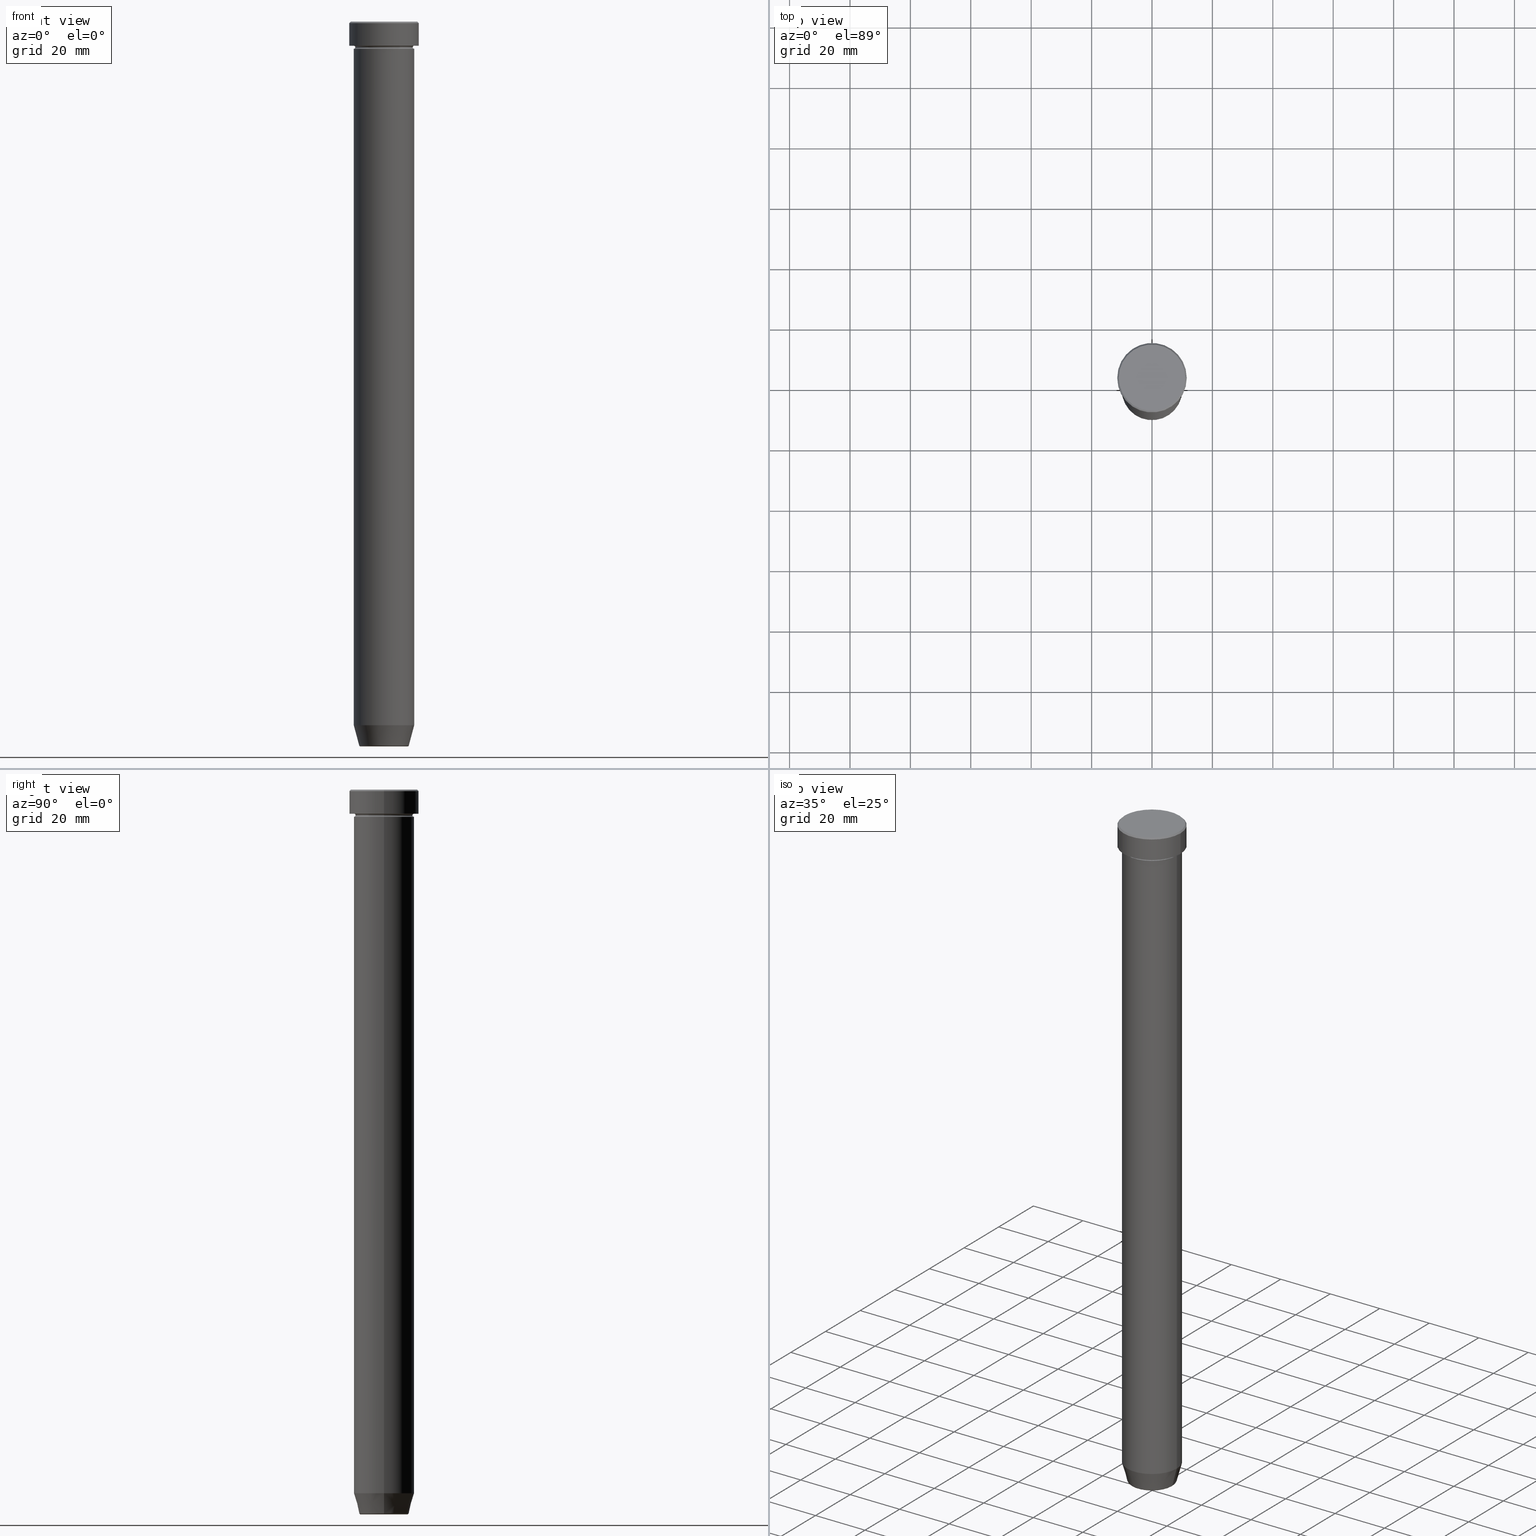
[diagram: canonical four-view strip — front | top / right | iso, engineering-drawing reading convention]
A machine part, canonical four-view strip (front | top / right | iso — engineering-drawing reading convention). The complete STEP part file that produces these views, byte-faithful:
ISO-10303-21;
HEADER;
FILE_DESCRIPTION (( 'STEP AP203' ),
    '1' );
FILE_NAME ('cfd7.STEP',
    '2024-01-02T20:51:13',
    ( '' ),
    ( '' ),
    'SwSTEP 2.0',
    'SolidWorks 2019',
    '' );
FILE_SCHEMA (( 'CONFIG_CONTROL_DESIGN' ));
ENDSEC;

DATA;
#1 = EDGE_CURVE ( 'NONE', #580, #427, #62, .T. ) ;
#2 = APPROVAL_DATE_TIME ( #593, #185 ) ;
#3 = AXIS2_PLACEMENT_3D ( 'NONE', #544, #119, #496 ) ;
#4 = DIRECTION ( 'NONE',  ( -0.000000000000000000, -0.000000000000000000, 1.000000000000000000 ) ) ;
#5 = ORIENTED_EDGE ( 'NONE', *, *, #238, .T. ) ;
#6 = DIRECTION ( 'NONE',  ( 1.000000000000000000, 0.000000000000000000, 0.000000000000000000 ) ) ;
#7 = ORIENTED_EDGE ( 'NONE', *, *, #264, .F. ) ;
#8 = PRODUCT_DEFINITION_FORMATION_WITH_SPECIFIED_SOURCE ( 'LIBOVOLN�', '', #524, .NOT_KNOWN. ) ;
#9 = EDGE_CURVE ( 'NONE', #16, #153, #400, .T. ) ;
#10 = CARTESIAN_POINT ( 'NONE',  ( 0.000000000000000000, 0.000000000000000000, 0.000000000000000000 ) ) ;
#11 = ORIENTED_EDGE ( 'NONE', *, *, #140, .F. ) ;
#12 = AXIS2_PLACEMENT_3D ( 'NONE', #106, #108, #480 ) ;
#13 = ORIENTED_EDGE ( 'NONE', *, *, #271, .F. ) ;
#14 = DATE_TIME_ROLE ( 'classification_date' ) ;
#15 = CARTESIAN_POINT ( 'NONE',  ( 0.000000000000000000, 0.000000000000000000, 0.000000000000000000 ) ) ;
#16 = VERTEX_POINT ( 'NONE', #165 ) ;
#17 = EDGE_CURVE ( 'NONE', #485, #552, #137, .T. ) ;
#18 = CIRCLE ( 'NONE', #361, 10.00000000000000000 ) ;
#19 = PERSON_AND_ORGANIZATION_ROLE ( 'creator' ) ;
#20 =( GEOMETRIC_REPRESENTATION_CONTEXT ( 3 ) GLOBAL_UNCERTAINTY_ASSIGNED_CONTEXT ( ( #217 ) ) GLOBAL_UNIT_ASSIGNED_CONTEXT ( ( #549, #46, #587 ) ) REPRESENTATION_CONTEXT ( 'NONE', 'WORKASPACE' ) );
#21 = LOCAL_TIME ( 21, 51, 13.00000000000000000, #43 ) ;
#22 = DIRECTION ( 'NONE',  ( 1.000000000000000000, 0.000000000000000000, 0.000000000000000000 ) ) ;
#23 = ORIENTED_EDGE ( 'NONE', *, *, #362, .F. ) ;
#24 = APPROVAL_STATUS ( 'not_yet_approved' ) ;
#25 = DIRECTION ( 'NONE',  ( 0.7071067811865426878, 8.659560562354874926E-17, -0.7071067811865524577 ) ) ;
#26 = ORIENTED_EDGE ( 'NONE', *, *, #147, .F. ) ;
#27 = CIRCLE ( 'NONE', #134, 10.00000000000000000 ) ;
#28 = DIRECTION ( 'NONE',  ( 1.000000000000000000, 0.000000000000000000, 0.000000000000000000 ) ) ;
#29 = DIRECTION ( 'NONE',  ( -0.000000000000000000, -0.000000000000000000, 1.000000000000000000 ) ) ;
#30 = AXIS2_PLACEMENT_3D ( 'NONE', #168, #497, #78 ) ;
#31 = AXIS2_PLACEMENT_3D ( 'NONE', #237, #98, #178 ) ;
#32 = EDGE_CURVE ( 'NONE', #247, #16, #467, .T. ) ;
#33 = CARTESIAN_POINT ( 'NONE',  ( 0.000000000000000000, 0.000000000000000000, -240.0000000000000000 ) ) ;
#34 = CARTESIAN_POINT ( 'NONE',  ( -7.740692158992660055, 9.479613875695375681E-16, -239.5000000000000000 ) ) ;
#35 = CARTESIAN_POINT ( 'NONE',  ( 10.00000000000000000, 0.000000000000000000, -8.500000000000000000 ) ) ;
#36 = DIRECTION ( 'NONE',  ( -1.000000000000000000, 1.224646799147353454E-16, 0.000000000000000000 ) ) ;
#37 = CIRCLE ( 'NONE', #115, 10.00000000000000000 ) ;
#38 = DIRECTION ( 'NONE',  ( 1.000000000000000000, 0.000000000000000000, 0.000000000000000000 ) ) ;
#39 = CARTESIAN_POINT ( 'NONE',  ( 0.000000000000000000, 11.50000000000000000, -8.000000000000000000 ) ) ;
#40 = EDGE_CURVE ( 'NONE', #120, #474, #18, .T. ) ;
#41 = DIRECTION ( 'NONE',  ( 0.000000000000000000, 0.000000000000000000, 1.000000000000000000 ) ) ;
#42 = CARTESIAN_POINT ( 'NONE',  ( 0.000000000000000000, 0.000000000000000000, -240.0000000000000000 ) ) ;
#43 = COORDINATED_UNIVERSAL_TIME_OFFSET ( 1, 0, .AHEAD. ) ;
#44 = FACE_OUTER_BOUND ( 'NONE', #48, .T. ) ;
#45 = CONICAL_SURFACE ( 'NONE', #487, 8.124355652982137244, 0.2617993877991495744 ) ;
#46 =( NAMED_UNIT ( * ) PLANE_ANGLE_UNIT ( ) SI_UNIT ( $, .RADIAN. ) );
#47 = FACE_OUTER_BOUND ( 'NONE', #141, .T. ) ;
#48 = EDGE_LOOP ( 'NONE', ( #568, #288, #13, #233 ) ) ;
#49 = CARTESIAN_POINT ( 'NONE',  ( -11.50000000000000000, 1.408343819019456176E-15, -8.000000000000000000 ) ) ;
#50 = EDGE_CURVE ( 'NONE', #118, #351, #500, .T. ) ;
#51 = CARTESIAN_POINT ( 'NONE',  ( 0.000000000000000000, 0.000000000000000000, -8.500000000000000000 ) ) ;
#52 = CLOSED_SHELL ( 'NONE', ( #398, #543, #256, #408, #248, #181, #444, #96, #113, #202, #392, #583, #527 ) ) ;
#53 = PERSON_AND_ORGANIZATION_ROLE ( 'classification_officer' ) ;
#54 = CARTESIAN_POINT ( 'NONE',  ( 0.000000000000000000, 0.000000000000000000, 0.000000000000000000 ) ) ;
#55 = CC_DESIGN_PERSON_AND_ORGANIZATION_ASSIGNMENT ( #210, #19, ( #8 ) ) ;
#56 = EDGE_LOOP ( 'NONE', ( #82, #65, #26, #196 ) ) ;
#57 = AXIS2_PLACEMENT_3D ( 'NONE', #61, #564, #386 ) ;
#58 = CYLINDRICAL_SURFACE ( 'NONE', #172, 9.999999999999998224 ) ;
#59 = ORIENTED_EDGE ( 'NONE', *, *, #355, .T. ) ;
#60 = EDGE_CURVE ( 'NONE', #552, #485, #100, .T. ) ;
#61 = CARTESIAN_POINT ( 'NONE',  ( 0.000000000000000000, 0.000000000000000000, -8.500000000000000000 ) ) ;
#62 = CIRCLE ( 'NONE', #388, 10.00000000000000000 ) ;
#63 = EDGE_LOOP ( 'NONE', ( #521, #325 ) ) ;
#64 = DIRECTION ( 'NONE',  ( 1.000000000000000000, 0.000000000000000000, 0.000000000000000000 ) ) ;
#65 = ORIENTED_EDGE ( 'NONE', *, *, #32, .T. ) ;
#66 = PRODUCT_DEFINITION_SHAPE ( 'NONE', 'NONE',  #211 ) ;
#67 = APPLICATION_CONTEXT ( 'configuration controlled 3d designs of mechanical parts and assemblies' ) ;
#68 = CIRCLE ( 'NONE', #154, 7.740692158992660055 ) ;
#69 = AXIS2_PLACEMENT_3D ( 'NONE', #54, #114, #249 ) ;
#70 = DIRECTION ( 'NONE',  ( -0.2588190451025209060, 3.169619151431766790E-17, 0.9659258262890682012 ) ) ;
#71 = ORIENTED_EDGE ( 'NONE', *, *, #238, .F. ) ;
#72 = DIRECTION ( 'NONE',  ( -0.000000000000000000, -0.000000000000000000, 1.000000000000000000 ) ) ;
#73 = ORIENTED_EDGE ( 'NONE', *, *, #571, .T. ) ;
#74 = CIRCLE ( 'NONE', #31, 10.00000000000000000 ) ;
#75 = CARTESIAN_POINT ( 'NONE',  ( 0.000000000000000000, 0.000000000000000000, -8.500000000000000000 ) ) ;
#76 = EDGE_LOOP ( 'NONE', ( #130, #431, #73, #261 ) ) ;
#77 = DIRECTION ( 'NONE',  ( -0.000000000000000000, -0.000000000000000000, 1.000000000000000000 ) ) ;
#78 = DIRECTION ( 'NONE',  ( -1.000000000000000000, 0.000000000000000000, 0.000000000000000000 ) ) ;
#79 = CIRCLE ( 'NONE', #356, 10.00000000000000000 ) ;
#80 = EDGE_CURVE ( 'NONE', #573, #151, #123, .T. ) ;
#81 = LINE ( 'NONE', #177, #558 ) ;
#82 = ORIENTED_EDGE ( 'NONE', *, *, #508, .F. ) ;
#83 = DIRECTION ( 'NONE',  ( 1.000000000000000000, 0.000000000000000000, 0.000000000000000000 ) ) ;
#84 = DIRECTION ( 'NONE',  ( 1.000000000000000000, 0.000000000000000000, 0.000000000000000000 ) ) ;
#85 = DATE_AND_TIME ( #228, #227 ) ;
#86 = EDGE_CURVE ( 'NONE', #120, #351, #268, .T. ) ;
#87 = DIRECTION ( 'NONE',  ( -0.7071067811865426878, 0.000000000000000000, -0.7071067811865524577 ) ) ;
#88 = AXIS2_PLACEMENT_3D ( 'NONE', #530, #239, #476 ) ;
#89 = APPLICATION_PROTOCOL_DEFINITION ( 'international standard', 'config_control_design', 1994, #466 ) ;
#90 = CARTESIAN_POINT ( 'NONE',  ( 0.000000000000000000, 0.000000000000000000, 0.000000000000000000 ) ) ;
#91 = APPROVAL_STATUS ( 'not_yet_approved' ) ;
#92 = DIRECTION ( 'NONE',  ( 1.000000000000000000, 0.000000000000000000, 0.000000000000000000 ) ) ;
#93 = VECTOR ( 'NONE', #457, 1000.000000000000000 ) ;
#94 = CARTESIAN_POINT ( 'NONE',  ( 10.00000000000000000, 1.224646799147353256E-15, -8.000000000000000000 ) ) ;
#95 = DIRECTION ( 'NONE',  ( 0.000000000000000000, 0.000000000000000000, -1.000000000000000000 ) ) ;
#96 = ADVANCED_FACE ( 'NONE', ( #47 ), #280, .T. ) ;
#97 = COORDINATED_UNIVERSAL_TIME_OFFSET ( 1, 0, .AHEAD. ) ;
#98 = DIRECTION ( 'NONE',  ( -0.000000000000000000, -0.000000000000000000, 1.000000000000000000 ) ) ;
#99 = CARTESIAN_POINT ( 'NONE',  ( 8.223655072137191269, 0.000000000000000000, -239.6294095225512706 ) ) ;
#100 = CIRCLE ( 'NONE', #588, 11.50000000000000000 ) ;
#101 = AXIS2_PLACEMENT_3D ( 'NONE', #269, #41, #132 ) ;
#102 = AXIS2_PLACEMENT_3D ( 'NONE', #414, #411, #331 ) ;
#103 = CARTESIAN_POINT ( 'NONE',  ( -11.50000000000000000, 1.408343819019456176E-15, 0.000000000000000000 ) ) ;
#104 = APPROVAL ( #326, 'NEUR�EN�' ) ;
#105 = ORIENTED_EDGE ( 'NONE', *, *, #80, .T. ) ;
#106 = CARTESIAN_POINT ( 'NONE',  ( 0.000000000000000000, 0.000000000000000000, -22.00000000000000000 ) ) ;
#107 = ORIENTED_EDGE ( 'NONE', *, *, #32, .F. ) ;
#108 = DIRECTION ( 'NONE',  ( -0.000000000000000000, -0.000000000000000000, 1.000000000000000000 ) ) ;
#109 = ORIENTED_EDGE ( 'NONE', *, *, #483, .T. ) ;
#110 = DIRECTION ( 'NONE',  ( -0.000000000000000000, -0.000000000000000000, 1.000000000000000000 ) ) ;
#111 = EDGE_LOOP ( 'NONE', ( #377, #518 ) ) ;
#112 = PERSON_AND_ORGANIZATION ( #577, #195 ) ;
#113 = ADVANCED_FACE ( 'NONE', ( #368, #273 ), #146, .T. ) ;
#114 = DIRECTION ( 'NONE',  ( 0.000000000000000000, 0.000000000000000000, -1.000000000000000000 ) ) ;
#115 = AXIS2_PLACEMENT_3D ( 'NONE', #138, #509, #363 ) ;
#116 = ORIENTED_EDGE ( 'NONE', *, *, #223, .T. ) ;
#117 = DIRECTION ( 'NONE',  ( 1.000000000000000000, 0.000000000000000000, 0.000000000000000000 ) ) ;
#118 = VERTEX_POINT ( 'NONE', #553 ) ;
#119 = DIRECTION ( 'NONE',  ( -0.000000000000000000, -1.000000000000000000, -0.000000000000000000 ) ) ;
#120 = VERTEX_POINT ( 'NONE', #282 ) ;
#121 = ADVANCED_FACE ( 'NONE', ( #44 ), #150, .T. ) ;
#122 = CARTESIAN_POINT ( 'NONE',  ( 0.000000000000000000, 0.000000000000000000, -22.00000000000000000 ) ) ;
#123 = LINE ( 'NONE', #219, #578 ) ;
#124 = CARTESIAN_POINT ( 'NONE',  ( 0.000000000000000000, 2.326828918379971286E-14, -240.0000000000000000 ) ) ;
#125 = EDGE_LOOP ( 'NONE', ( #536, #109, #259, #532 ) ) ;
#126 = AXIS2_PLACEMENT_3D ( 'NONE', #453, #29, #84 ) ;
#127 = CC_DESIGN_PERSON_AND_ORGANIZATION_ASSIGNMENT ( #456, #459, ( #524 ) ) ;
#128 = LOCAL_TIME ( 21, 51, 13.00000000000000000, #302 ) ;
#129 = DATE_AND_TIME ( #598, #380 ) ;
#130 = ORIENTED_EDGE ( 'NONE', *, *, #17, .T. ) ;
#131 = CC_DESIGN_PERSON_AND_ORGANIZATION_ASSIGNMENT ( #112, #257, ( #8 ) ) ;
#132 = DIRECTION ( 'NONE',  ( 1.000000000000000000, 0.000000000000000000, 0.000000000000000000 ) ) ;
#133 = PLANE ( 'NONE',  #590 ) ;
#134 = AXIS2_PLACEMENT_3D ( 'NONE', #122, #171, #22 ) ;
#135 = PERSON_AND_ORGANIZATION ( #577, #195 ) ;
#136 = FACE_OUTER_BOUND ( 'NONE', #76, .T. ) ;
#137 = CIRCLE ( 'NONE', #126, 11.50000000000000000 ) ;
#138 = CARTESIAN_POINT ( 'NONE',  ( 0.000000000000000000, 0.000000000000000000, -8.000000000000000000 ) ) ;
#139 = CARTESIAN_POINT ( 'NONE',  ( 8.124355652982137244, 0.000000000000000000, -240.0000000000000000 ) ) ;
#140 = EDGE_CURVE ( 'NONE', #481, #351, #74, .T. ) ;
#141 = EDGE_LOOP ( 'NONE', ( #349, #206, #436, #545 ) ) ;
#142 = CARTESIAN_POINT ( 'NONE',  ( 0.000000000000000000, 0.000000000000000000, 0.000000000000000000 ) ) ;
#143 = AXIS2_PLACEMENT_3D ( 'NONE', #10, #294, #430 ) ;
#144 = AXIS2_PLACEMENT_3D ( 'NONE', #164, #77, #117 ) ;
#145 = APPROVAL_DATE_TIME ( #293, #299 ) ;
#146 = PLANE ( 'NONE',  #449 ) ;
#147 = EDGE_CURVE ( 'NONE', #153, #16, #517, .T. ) ;
#148 = SHAPE_DEFINITION_REPRESENTATION ( #66, #199 ) ;
#149 = CARTESIAN_POINT ( 'NONE',  ( 0.000000000000000000, 0.000000000000000000, -0.5000000000000073275 ) ) ;
#150 = CONICAL_SURFACE ( 'NONE', #554, 8.124355652982137244, 0.2617993877991495744 ) ;
#151 = VERTEX_POINT ( 'NONE', #547 ) ;
#152 = DIRECTION ( 'NONE',  ( 0.000000000000000000, 0.000000000000000000, -1.000000000000000000 ) ) ;
#153 = VERTEX_POINT ( 'NONE', #99 ) ;
#154 = AXIS2_PLACEMENT_3D ( 'NONE', #42, #277, #418 ) ;
#155 = CIRCLE ( 'NONE', #180, 9.999999999999998224 ) ;
#156 = CARTESIAN_POINT ( 'NONE',  ( 0.000000000000000000, 0.000000000000000000, -232.9999999999999716 ) ) ;
#157 = ORIENTED_EDGE ( 'NONE', *, *, #330, .T. ) ;
#158 = DIRECTION ( 'NONE',  ( -0.000000000000000000, -0.000000000000000000, 1.000000000000000000 ) ) ;
#159 = EDGE_LOOP ( 'NONE', ( #419, #340, #384, #563 ) ) ;
#160 = EDGE_CURVE ( 'NONE', #203, #153, #352, .T. ) ;
#161 = AXIS2_PLACEMENT_3D ( 'NONE', #465, #374, #409 ) ;
#162 = ORIENTED_EDGE ( 'NONE', *, *, #80, .F. ) ;
#163 = MANIFOLD_SOLID_BREP ( 'Zkosen�1', #52 ) ;
#164 = CARTESIAN_POINT ( 'NONE',  ( 0.000000000000000000, 0.000000000000000000, -239.5000000000000000 ) ) ;
#165 = CARTESIAN_POINT ( 'NONE',  ( -8.223655072137191269, 1.115877042642912251E-15, -239.6294095225512706 ) ) ;
#166 = EDGE_CURVE ( 'NONE', #474, #481, #504, .T. ) ;
#167 = DIRECTION ( 'NONE',  ( -0.000000000000000000, -0.000000000000000000, 1.000000000000000000 ) ) ;
#168 = CARTESIAN_POINT ( 'NONE',  ( 0.000000000000000000, 0.000000000000000000, -239.6294095225512706 ) ) ;
#169 = DIRECTION ( 'NONE',  ( 0.000000000000000000, -1.000000000000000000, 0.000000000000000000 ) ) ;
#170 = CARTESIAN_POINT ( 'NONE',  ( 0.000000000000000000, 0.000000000000000000, -8.000000000000000000 ) ) ;
#171 = DIRECTION ( 'NONE',  ( -0.000000000000000000, -0.000000000000000000, 1.000000000000000000 ) ) ;
#172 = AXIS2_PLACEMENT_3D ( 'NONE', #560, #244, #284 ) ;
#173 = CARTESIAN_POINT ( 'NONE',  ( -10.00000000000000000, 1.224646799147353256E-15, -8.500000000000000000 ) ) ;
#174 = CIRCLE ( 'NONE', #234, 7.740692158992660055 ) ;
#175 = CARTESIAN_POINT ( 'NONE',  ( 0.000000000000000000, 0.000000000000000000, 0.000000000000000000 ) ) ;
#176 = DIRECTION ( 'NONE',  ( -1.000000000000000000, 1.224646799147353454E-16, 0.000000000000000000 ) ) ;
#177 = CARTESIAN_POINT ( 'NONE',  ( 11.50000000000000000, 0.000000000000000000, 0.000000000000000000 ) ) ;
#178 = DIRECTION ( 'NONE',  ( 1.000000000000000000, 0.000000000000000000, 0.000000000000000000 ) ) ;
#179 = DIRECTION ( 'NONE',  ( -0.000000000000000000, -0.000000000000000000, 1.000000000000000000 ) ) ;
#180 = AXIS2_PLACEMENT_3D ( 'NONE', #156, #525, #64 ) ;
#181 = ADVANCED_FACE ( 'NONE', ( #463 ), #133, .T. ) ;
#182 = FACE_OUTER_BOUND ( 'NONE', #319, .T. ) ;
#183 = FACE_OUTER_BOUND ( 'NONE', #159, .T. ) ;
#184 = CARTESIAN_POINT ( 'NONE',  ( -7.740692158992660055, 9.775343368540041107E-16, -240.0000000000000000 ) ) ;
#185 = APPROVAL ( #91, 'NEUR�EN�' ) ;
#186 = DIRECTION ( 'NONE',  ( -1.000000000000000000, 0.000000000000000000, 0.000000000000000000 ) ) ;
#187 = CARTESIAN_POINT ( 'NONE',  ( 9.999999999999998224, 0.000000000000000000, -232.9999999999999716 ) ) ;
#188 = CIRCLE ( 'NONE', #531, 9.999999999999998224 ) ;
#189 = EDGE_CURVE ( 'NONE', #118, #241, #334, .T. ) ;
#190 = AXIS2_PLACEMENT_3D ( 'NONE', #191, #110, #376 ) ;
#191 = CARTESIAN_POINT ( 'NONE',  ( 0.000000000000000000, 0.000000000000000000, -9.000000000000001776 ) ) ;
#192 = EDGE_LOOP ( 'NONE', ( #447, #292, #283, #300 ) ) ;
#193 = PLANE ( 'NONE',  #278 ) ;
#194 = AXIS2_PLACEMENT_3D ( 'NONE', #173, #586, #176 ) ;
#195 = ORGANIZATION ( 'NEUR�EN�', 'NEUR�EN�', '' ) ;
#196 = ORIENTED_EDGE ( 'NONE', *, *, #160, .F. ) ;
#197 = DIRECTION ( 'NONE',  ( 1.000000000000000000, 0.000000000000000000, 0.000000000000000000 ) ) ;
#198 = EDGE_LOOP ( 'NONE', ( #501, #489 ) ) ;
#199 = ADVANCED_BREP_SHAPE_REPRESENTATION ( 'cfd7', ( #163, #373, #101 ), #20 ) ;
#200 = AXIS2_PLACEMENT_3D ( 'NONE', #149, #332, #197 ) ;
#201 = DIRECTION ( 'NONE',  ( 1.000000000000000000, 0.000000000000000000, 0.000000000000000000 ) ) ;
#202 = ADVANCED_FACE ( 'NONE', ( #182 ), #510, .T. ) ;
#203 = VERTEX_POINT ( 'NONE', #515 ) ;
#204 = CARTESIAN_POINT ( 'NONE',  ( 10.00000000000000000, 0.000000000000000000, -22.00000000000000000 ) ) ;
#205 = PRODUCT_RELATED_PRODUCT_CATEGORY ( 'detail', '', ( #524 ) ) ;
#206 = ORIENTED_EDGE ( 'NONE', *, *, #60, .T. ) ;
#207 = COORDINATED_UNIVERSAL_TIME_OFFSET ( 1, 0, .AHEAD. ) ;
#208 = CARTESIAN_POINT ( 'NONE',  ( 10.00000000000000000, 0.000000000000000000, -9.000000000000001776 ) ) ;
#209 = EDGE_LOOP ( 'NONE', ( #401, #5, #461, #394 ) ) ;
#210 = PERSON_AND_ORGANIZATION ( #577, #195 ) ;
#211 = PRODUCT_DEFINITION ( 'NEZN�M�', '', #8, #378 ) ;
#212 = DIRECTION ( 'NONE',  ( 1.000000000000000000, 0.000000000000000000, 0.000000000000000000 ) ) ;
#213 = TOROIDAL_SURFACE ( 'NONE', #144, 7.740692158992660055, 0.5000000000000000000 ) ;
#214 = VERTEX_POINT ( 'NONE', #589 ) ;
#215 = CARTESIAN_POINT ( 'NONE',  ( 0.000000000000000000, 0.000000000000000000, -240.0000000000000000 ) ) ;
#216 = VERTEX_POINT ( 'NONE', #187 ) ;
#217 = UNCERTAINTY_MEASURE_WITH_UNIT (LENGTH_MEASURE( 1.000000000000000082E-05 ), #549, 'distance_accuracy_value', 'NONE');
#218 = DIRECTION ( 'NONE',  ( 0.000000000000000000, 0.000000000000000000, -1.000000000000000000 ) ) ;
#219 = CARTESIAN_POINT ( 'NONE',  ( -11.00000000000000000, 0.000000000000000000, 0.000000000000000000 ) ) ;
#220 = FACE_OUTER_BOUND ( 'NONE', #111, .T. ) ;
#221 = VECTOR ( 'NONE', #70, 1000.000000000000000 ) ;
#222 = CARTESIAN_POINT ( 'NONE',  ( 0.000000000000000000, 0.000000000000000000, -22.00000000000000000 ) ) ;
#223 = EDGE_CURVE ( 'NONE', #153, #216, #270, .T. ) ;
#224 = AXIS2_PLACEMENT_3D ( 'NONE', #75, #323, #186 ) ;
#225 = DIRECTION ( 'NONE',  ( 0.000000000000000000, 0.000000000000000000, -1.000000000000000000 ) ) ;
#226 = DIRECTION ( 'NONE',  ( -1.000000000000000000, 0.000000000000000000, -0.000000000000000000 ) ) ;
#227 = LOCAL_TIME ( 21, 51, 13.00000000000000000, #97 ) ;
#228 = CALENDAR_DATE ( 2024, 2, 1 ) ;
#229 = CARTESIAN_POINT ( 'NONE',  ( 10.00000000000000000, 0.000000000000000000, 0.000000000000000000 ) ) ;
#230 = EDGE_CURVE ( 'NONE', #203, #247, #68, .T. ) ;
#231 = CALENDAR_DATE ( 2024, 2, 1 ) ;
#232 = DIRECTION ( 'NONE',  ( 1.000000000000000000, 0.000000000000000000, 0.000000000000000000 ) ) ;
#233 = ORIENTED_EDGE ( 'NONE', *, *, #223, .F. ) ;
#234 = AXIS2_PLACEMENT_3D ( 'NONE', #33, #537, #28 ) ;
#235 = DIRECTION ( 'NONE',  ( -0.000000000000000000, -0.000000000000000000, 1.000000000000000000 ) ) ;
#236 = APPROVAL_DATE_TIME ( #85, #104 ) ;
#237 = CARTESIAN_POINT ( 'NONE',  ( 0.000000000000000000, 0.000000000000000000, -9.000000000000001776 ) ) ;
#238 = EDGE_CURVE ( 'NONE', #214, #216, #188, .T. ) ;
#239 = DIRECTION ( 'NONE',  ( -1.224646799147353207E-16, 1.000000000000000000, 0.000000000000000000 ) ) ;
#240 = CC_DESIGN_PERSON_AND_ORGANIZATION_ASSIGNMENT ( #253, #53, ( #311 ) ) ;
#241 = VERTEX_POINT ( 'NONE', #366 ) ;
#242 = AXIS2_PLACEMENT_3D ( 'NONE', #15, #473, #6 ) ;
#243 = CIRCLE ( 'NONE', #433, 9.500000000000000000 ) ;
#244 = DIRECTION ( 'NONE',  ( -0.000000000000000000, -0.000000000000000000, 1.000000000000000000 ) ) ;
#245 = EDGE_LOOP ( 'NONE', ( #526, #542, #285, #162 ) ) ;
#246 = CARTESIAN_POINT ( 'NONE',  ( 0.000000000000000000, 0.000000000000000000, -22.00000000000000000 ) ) ;
#247 = VERTEX_POINT ( 'NONE', #184 ) ;
#248 = ADVANCED_FACE ( 'NONE', ( #136 ), #556, .T. ) ;
#249 = DIRECTION ( 'NONE',  ( -1.000000000000000000, 0.000000000000000000, 0.000000000000000000 ) ) ;
#250 = VERTEX_POINT ( 'NONE', #513 ) ;
#251 = CARTESIAN_POINT ( 'NONE',  ( 0.000000000000000000, 0.000000000000000000, -22.00000000000000000 ) ) ;
#252 = ORIENTED_EDGE ( 'NONE', *, *, #230, .F. ) ;
#253 = PERSON_AND_ORGANIZATION ( #577, #195 ) ;
#254 = FACE_OUTER_BOUND ( 'NONE', #566, .T. ) ;
#255 = EDGE_LOOP ( 'NONE', ( #59, #538, #11, #333 ) ) ;
#256 = ADVANCED_FACE ( 'NONE', ( #528 ), #422, .F. ) ;
#257 = PERSON_AND_ORGANIZATION_ROLE ( 'design_supplier' ) ;
#258 = DIRECTION ( 'NONE',  ( -0.000000000000000000, -0.000000000000000000, 1.000000000000000000 ) ) ;
#259 = ORIENTED_EDGE ( 'NONE', *, *, #330, .F. ) ;
#260 = CARTESIAN_POINT ( 'NONE',  ( 11.50000000000000000, 0.000000000000000000, -8.000000000000000000 ) ) ;
#261 = ORIENTED_EDGE ( 'NONE', *, *, #550, .F. ) ;
#262 = FACE_OUTER_BOUND ( 'NONE', #125, .T. ) ;
#263 = ORIENTED_EDGE ( 'NONE', *, *, #452, .F. ) ;
#264 = EDGE_CURVE ( 'NONE', #342, #151, #267, .T. ) ;
#265 = DIRECTION ( 'NONE',  ( 0.000000000000000000, -0.000000000000000000, 1.000000000000000000 ) ) ;
#266 = DIRECTION ( 'NONE',  ( 1.224646799147353207E-16, 1.000000000000000000, 0.000000000000000000 ) ) ;
#267 = CIRCLE ( 'NONE', #200, 11.50000000000000000 ) ;
#268 = LINE ( 'NONE', #306, #479 ) ;
#269 = CARTESIAN_POINT ( 'NONE',  ( 0.000000000000000000, 0.000000000000000000, 0.000000000000000000 ) ) ;
#270 = LINE ( 'NONE', #139, #93 ) ;
#271 = EDGE_CURVE ( 'NONE', #216, #214, #155, .T. ) ;
#272 = APPROVAL_ROLE ( '' ) ;
#273 = FACE_OUTER_BOUND ( 'NONE', #561, .T. ) ;
#274 = ORIENTED_EDGE ( 'NONE', *, *, #50, .F. ) ;
#275 = CARTESIAN_POINT ( 'NONE',  ( 0.000000000000000000, 0.000000000000000000, -8.500000000000000000 ) ) ;
#276 = AXIS2_PLACEMENT_3D ( 'NONE', #90, #597, #599 ) ;
#277 = DIRECTION ( 'NONE',  ( 0.000000000000000000, 0.000000000000000000, -1.000000000000000000 ) ) ;
#278 = AXIS2_PLACEMENT_3D ( 'NONE', #246, #152, #335 ) ;
#279 = AXIS2_PLACEMENT_3D ( 'NONE', #124, #575, #305 ) ;
#280 = CYLINDRICAL_SURFACE ( 'NONE', #321, 11.50000000000000000 ) ;
#281 = EDGE_CURVE ( 'NONE', #216, #391, #562, .T. ) ;
#282 = CARTESIAN_POINT ( 'NONE',  ( -10.00000000000000000, 1.224646799147353256E-15, -22.00000000000000000 ) ) ;
#283 = ORIENTED_EDGE ( 'NONE', *, *, #289, .T. ) ;
#284 = DIRECTION ( 'NONE',  ( 1.000000000000000000, 0.000000000000000000, 0.000000000000000000 ) ) ;
#285 = ORIENTED_EDGE ( 'NONE', *, *, #571, .F. ) ;
#286 = TOROIDAL_SURFACE ( 'NONE', #224, 10.00000000000000000, 0.5000000000000000000 ) ;
#287 = DIRECTION ( 'NONE',  ( -0.000000000000000000, -0.000000000000000000, 1.000000000000000000 ) ) ;
#288 = ORIENTED_EDGE ( 'NONE', *, *, #362, .T. ) ;
#289 = EDGE_CURVE ( 'NONE', #351, #481, #520, .T. ) ;
#290 = DIRECTION ( 'NONE',  ( 1.000000000000000000, 0.000000000000000000, 0.000000000000000000 ) ) ;
#291 = CC_DESIGN_APPROVAL ( #185, ( #8 ) ) ;
#292 = ORIENTED_EDGE ( 'NONE', *, *, #50, .T. ) ;
#293 = DATE_AND_TIME ( #574, #546 ) ;
#294 = DIRECTION ( 'NONE',  ( -0.000000000000000000, -0.000000000000000000, 1.000000000000000000 ) ) ;
#295 = ORIENTED_EDGE ( 'NONE', *, *, #471, .T. ) ;
#296 = EDGE_CURVE ( 'NONE', #552, #151, #426, .T. ) ;
#297 = EDGE_LOOP ( 'NONE', ( #107, #252, #360, #576 ) ) ;
#298 = FACE_OUTER_BOUND ( 'NONE', #455, .T. ) ;
#299 = APPROVAL ( #24, 'NEUR�EN�' ) ;
#300 = ORIENTED_EDGE ( 'NONE', *, *, #471, .F. ) ;
#301 = CC_DESIGN_APPROVAL ( #104, ( #211 ) ) ;
#302 = COORDINATED_UNIVERSAL_TIME_OFFSET ( 1, 0, .AHEAD. ) ;
#303 = LINE ( 'NONE', #446, #475 ) ;
#304 = VERTEX_POINT ( 'NONE', #390 ) ;
#305 = DIRECTION ( 'NONE',  ( 1.000000000000000000, 0.000000000000000000, 0.000000000000000000 ) ) ;
#306 = CARTESIAN_POINT ( 'NONE',  ( -10.00000000000000000, 1.224646799147353256E-15, 0.000000000000000000 ) ) ;
#307 = EDGE_CURVE ( 'NONE', #250, #573, #424, .T. ) ;
#308 = DIRECTION ( 'NONE',  ( 1.000000000000000000, 0.000000000000000000, 0.000000000000000000 ) ) ;
#309 = ORIENTED_EDGE ( 'NONE', *, *, #60, .F. ) ;
#310 = AXIS2_PLACEMENT_3D ( 'NONE', #365, #225, #38 ) ;
#311 = SECURITY_CLASSIFICATION ( '', '', #395 ) ;
#312 = DATE_TIME_ROLE ( 'creation_date' ) ;
#313 = DIRECTION ( 'NONE',  ( -0.000000000000000000, -0.000000000000000000, 1.000000000000000000 ) ) ;
#314 = ADVANCED_FACE ( 'NONE', ( #428 ), #58, .T. ) ;
#315 = VECTOR ( 'NONE', #287, 1000.000000000000000 ) ;
#316 = DIRECTION ( 'NONE',  ( -1.000000000000000000, 0.000000000000000000, -0.000000000000000000 ) ) ;
#317 = PERSON_AND_ORGANIZATION ( #577, #195 ) ;
#318 = CARTESIAN_POINT ( 'NONE',  ( 0.000000000000000000, 0.000000000000000000, -232.9999999999999716 ) ) ;
#319 = EDGE_LOOP ( 'NONE', ( #458, #429, #529, #387 ) ) ;
#320 = CLOSED_SHELL ( 'NONE', ( #502, #121, #417, #343, #314, #514, #493, #534 ) ) ;
#321 = AXIS2_PLACEMENT_3D ( 'NONE', #324, #364, #460 ) ;
#322 = APPROVAL_PERSON_ORGANIZATION ( #506, #185, #272 ) ;
#323 = DIRECTION ( 'NONE',  ( 0.000000000000000000, 0.000000000000000000, -1.000000000000000000 ) ) ;
#324 = CARTESIAN_POINT ( 'NONE',  ( 0.000000000000000000, 0.000000000000000000, 0.000000000000000000 ) ) ;
#325 = ORIENTED_EDGE ( 'NONE', *, *, #307, .T. ) ;
#326 = APPROVAL_STATUS ( 'not_yet_approved' ) ;
#327 = DIRECTION ( 'NONE',  ( 1.000000000000000000, 0.000000000000000000, 0.000000000000000000 ) ) ;
#328 = CIRCLE ( 'NONE', #12, 10.00000000000000000 ) ;
#329 = CIRCLE ( 'NONE', #338, 0.5000000000000004441 ) ;
#330 = EDGE_CURVE ( 'NONE', #391, #304, #79, .T. ) ;
#331 = DIRECTION ( 'NONE',  ( 0.000000000000000000, 0.000000000000000000, -1.000000000000000000 ) ) ;
#332 = DIRECTION ( 'NONE',  ( 0.000000000000000000, 0.000000000000000000, -1.000000000000000000 ) ) ;
#333 = ORIENTED_EDGE ( 'NONE', *, *, #166, .F. ) ;
#334 = CIRCLE ( 'NONE', #495, 9.500000000000000000 ) ;
#335 = DIRECTION ( 'NONE',  ( -1.000000000000000000, 0.000000000000000000, -0.000000000000000000 ) ) ;
#336 = EDGE_CURVE ( 'NONE', #573, #250, #413, .T. ) ;
#337 = ORIENTED_EDGE ( 'NONE', *, *, #17, .F. ) ;
#338 = AXIS2_PLACEMENT_3D ( 'NONE', #35, #169, #353 ) ;
#339 = FACE_OUTER_BOUND ( 'NONE', #582, .T. ) ;
#340 = ORIENTED_EDGE ( 'NONE', *, *, #452, .T. ) ;
#341 = DIRECTION ( 'NONE',  ( -0.000000000000000000, -0.000000000000000000, 1.000000000000000000 ) ) ;
#342 = VERTEX_POINT ( 'NONE', #434 ) ;
#343 = ADVANCED_FACE ( 'NONE', ( #339 ), #193, .F. ) ;
#344 = FACE_OUTER_BOUND ( 'NONE', #245, .T. ) ;
#345 = ORIENTED_EDGE ( 'NONE', *, *, #9, .T. ) ;
#346 = AXIS2_PLACEMENT_3D ( 'NONE', #381, #4, #201 ) ;
#347 = CC_DESIGN_DATE_AND_TIME_ASSIGNMENT ( #375, #14, ( #311 ) ) ;
#348 = CARTESIAN_POINT ( 'NONE',  ( 0.000000000000000000, 0.000000000000000000, 0.000000000000000000 ) ) ;
#349 = ORIENTED_EDGE ( 'NONE', *, *, #296, .F. ) ;
#350 = FACE_OUTER_BOUND ( 'NONE', #56, .T. ) ;
#351 = VERTEX_POINT ( 'NONE', #519 ) ;
#352 = CIRCLE ( 'NONE', #102, 0.5000000000000004441 ) ;
#353 = DIRECTION ( 'NONE',  ( 0.000000000000000000, 0.000000000000000000, -1.000000000000000000 ) ) ;
#354 = EDGE_LOOP ( 'NONE', ( #274, #263, #295, #570 ) ) ;
#355 = EDGE_CURVE ( 'NONE', #474, #120, #328, .T. ) ;
#356 = AXIS2_PLACEMENT_3D ( 'NONE', #251, #341, #290 ) ;
#357 = PLANE ( 'NONE',  #405 ) ;
#358 = CARTESIAN_POINT ( 'NONE',  ( 0.000000000000000000, 0.000000000000000000, -8.000000000000000000 ) ) ;
#359 = CARTESIAN_POINT ( 'NONE',  ( 0.000000000000000000, 0.000000000000000000, -239.5000000000000000 ) ) ;
#360 = ORIENTED_EDGE ( 'NONE', *, *, #160, .T. ) ;
#361 = AXIS2_PLACEMENT_3D ( 'NONE', #222, #407, #539 ) ;
#362 = EDGE_CURVE ( 'NONE', #16, #214, #383, .T. ) ;
#363 = DIRECTION ( 'NONE',  ( -1.000000000000000000, 0.000000000000000000, 0.000000000000000000 ) ) ;
#364 = DIRECTION ( 'NONE',  ( -0.000000000000000000, -0.000000000000000000, 1.000000000000000000 ) ) ;
#365 = CARTESIAN_POINT ( 'NONE',  ( 0.000000000000000000, 0.000000000000000000, -0.5000000000000073275 ) ) ;
#366 = CARTESIAN_POINT ( 'NONE',  ( 9.500000000000000000, 0.000000000000000000, -8.500000000000000000 ) ) ;
#367 = COORDINATED_UNIVERSAL_TIME_OFFSET ( 1, 0, .AHEAD. ) ;
#368 = FACE_BOUND ( 'NONE', #499, .T. ) ;
#369 = ORIENTED_EDGE ( 'NONE', *, *, #372, .T. ) ;
#370 = DIRECTION ( 'NONE',  ( 0.000000000000000000, 0.000000000000000000, -1.000000000000000000 ) ) ;
#371 = CARTESIAN_POINT ( 'NONE',  ( 0.000000000000000000, 0.000000000000000000, -240.0000000000000000 ) ) ;
#372 = EDGE_CURVE ( 'NONE', #241, #580, #533, .T. ) ;
#373 = MANIFOLD_SOLID_BREP ( 'Zaoblit4', #320 ) ;
#374 = DIRECTION ( 'NONE',  ( -0.000000000000000000, -0.000000000000000000, 1.000000000000000000 ) ) ;
#375 = DATE_AND_TIME ( #557, #128 ) ;
#376 = DIRECTION ( 'NONE',  ( 1.000000000000000000, 0.000000000000000000, 0.000000000000000000 ) ) ;
#377 = ORIENTED_EDGE ( 'NONE', *, *, #230, .T. ) ;
#378 = DESIGN_CONTEXT ( 'detailed design', #67, 'design' ) ;
#379 = CC_DESIGN_DATE_AND_TIME_ASSIGNMENT ( #129, #312, ( #211 ) ) ;
#380 = LOCAL_TIME ( 21, 51, 13.00000000000000000, #367 ) ;
#381 = CARTESIAN_POINT ( 'NONE',  ( 0.000000000000000000, 0.000000000000000000, -8.500000000000000000 ) ) ;
#382 = ORIENTED_EDGE ( 'NONE', *, *, #462, .F. ) ;
#383 = LINE ( 'NONE', #484, #221 ) ;
#384 = ORIENTED_EDGE ( 'NONE', *, *, #425, .T. ) ;
#385 = TOROIDAL_SURFACE ( 'NONE', #512, 7.740692158992660055, 0.5000000000000000000 ) ;
#386 = DIRECTION ( 'NONE',  ( 1.000000000000000000, 0.000000000000000000, 0.000000000000000000 ) ) ;
#387 = ORIENTED_EDGE ( 'NONE', *, *, #289, .F. ) ;
#388 = AXIS2_PLACEMENT_3D ( 'NONE', #170, #443, #397 ) ;
#389 = AXIS2_PLACEMENT_3D ( 'NONE', #275, #370, #410 ) ;
#390 = CARTESIAN_POINT ( 'NONE',  ( -10.00000000000000000, 1.224646799147353256E-15, -22.00000000000000000 ) ) ;
#391 = VERTEX_POINT ( 'NONE', #204 ) ;
#392 = ADVANCED_FACE ( 'NONE', ( #569 ), #432, .F. ) ;
#393 = CARTESIAN_POINT ( 'NONE',  ( 0.000000000000000000, 0.000000000000000000, 0.000000000000000000 ) ) ;
#394 = ORIENTED_EDGE ( 'NONE', *, *, #435, .F. ) ;
#395 = SECURITY_CLASSIFICATION_LEVEL ( 'unclassified' ) ;
#396 = PLANE ( 'NONE',  #279 ) ;
#397 = DIRECTION ( 'NONE',  ( -1.000000000000000000, 0.000000000000000000, 0.000000000000000000 ) ) ;
#398 = ADVANCED_FACE ( 'NONE', ( #344 ), #584, .T. ) ;
#399 = DIRECTION ( 'NONE',  ( -0.000000000000000000, -0.000000000000000000, 1.000000000000000000 ) ) ;
#400 = CIRCLE ( 'NONE', #30, 8.223655072137191269 ) ;
#401 = ORIENTED_EDGE ( 'NONE', *, *, #483, .F. ) ;
#402 = FACE_OUTER_BOUND ( 'NONE', #297, .T. ) ;
#403 = ORIENTED_EDGE ( 'NONE', *, *, #435, .T. ) ;
#404 = CIRCLE ( 'NONE', #3, 0.5000000000000004441 ) ;
#405 = AXIS2_PLACEMENT_3D ( 'NONE', #348, #265, #579 ) ;
#406 = FACE_OUTER_BOUND ( 'NONE', #63, .T. ) ;
#407 = DIRECTION ( 'NONE',  ( -0.000000000000000000, -0.000000000000000000, 1.000000000000000000 ) ) ;
#408 = ADVANCED_FACE ( 'NONE', ( #567 ), #470, .T. ) ;
#409 = DIRECTION ( 'NONE',  ( -1.000000000000000000, 0.000000000000000000, 0.000000000000000000 ) ) ;
#410 = DIRECTION ( 'NONE',  ( -1.000000000000000000, 0.000000000000000000, 0.000000000000000000 ) ) ;
#411 = DIRECTION ( 'NONE',  ( 0.000000000000000000, -1.000000000000000000, 0.000000000000000000 ) ) ;
#412 = CARTESIAN_POINT ( 'NONE',  ( -11.00000000000000000, 0.000000000000000000, 0.000000000000000000 ) ) ;
#413 = CIRCLE ( 'NONE', #242, 11.00000000000000000 ) ;
#414 = CARTESIAN_POINT ( 'NONE',  ( 7.740692158992660055, 0.000000000000000000, -239.5000000000000000 ) ) ;
#415 = AXIS2_PLACEMENT_3D ( 'NONE', #175, #218, #585 ) ;
#416 = ORIENTED_EDGE ( 'NONE', *, *, #189, .T. ) ;
#417 = ADVANCED_FACE ( 'NONE', ( #262 ), #448, .T. ) ;
#418 = DIRECTION ( 'NONE',  ( 1.000000000000000000, 0.000000000000000000, 0.000000000000000000 ) ) ;
#419 = ORIENTED_EDGE ( 'NONE', *, *, #372, .F. ) ;
#420 = PERSON_AND_ORGANIZATION_ROLE ( 'creator' ) ;
#421 = DIRECTION ( 'NONE',  ( -0.000000000000000000, -0.000000000000000000, 1.000000000000000000 ) ) ;
#422 = TOROIDAL_SURFACE ( 'NONE', #346, 10.00000000000000000, 0.5000000000000000000 ) ;
#423 = CARTESIAN_POINT ( 'NONE',  ( 0.000000000000000000, 0.000000000000000000, 0.000000000000000000 ) ) ;
#424 = CIRCLE ( 'NONE', #143, 11.00000000000000000 ) ;
#425 = EDGE_CURVE ( 'NONE', #118, #427, #404, .T. ) ;
#426 = LINE ( 'NONE', #103, #315 ) ;
#427 = VERTEX_POINT ( 'NONE', #442 ) ;
#428 = FACE_OUTER_BOUND ( 'NONE', #209, .T. ) ;
#429 = ORIENTED_EDGE ( 'NONE', *, *, #40, .T. ) ;
#430 = DIRECTION ( 'NONE',  ( 1.000000000000000000, 0.000000000000000000, 0.000000000000000000 ) ) ;
#431 = ORIENTED_EDGE ( 'NONE', *, *, #296, .T. ) ;
#432 = TOROIDAL_SURFACE ( 'NONE', #57, 10.00000000000000000, 0.5000000000000000000 ) ;
#433 = AXIS2_PLACEMENT_3D ( 'NONE', #581, #535, #572 ) ;
#434 = CARTESIAN_POINT ( 'NONE',  ( 11.50000000000000000, 0.000000000000000000, -0.5000000000000073275 ) ) ;
#435 = EDGE_CURVE ( 'NONE', #304, #391, #27, .T. ) ;
#436 = ORIENTED_EDGE ( 'NONE', *, *, #550, .T. ) ;
#437 = TOROIDAL_SURFACE ( 'NONE', #389, 10.00000000000000000, 0.5000000000000000000 ) ;
#438 = CARTESIAN_POINT ( 'NONE',  ( 10.00000000000000000, 0.000000000000000000, -22.00000000000000000 ) ) ;
#439 = ORIENTED_EDGE ( 'NONE', *, *, #1, .T. ) ;
#440 = CC_DESIGN_APPROVAL ( #299, ( #311 ) ) ;
#441 = PERSON_AND_ORGANIZATION ( #577, #195 ) ;
#442 = CARTESIAN_POINT ( 'NONE',  ( -10.00000000000000000, 0.000000000000000000, -8.000000000000000000 ) ) ;
#443 = DIRECTION ( 'NONE',  ( -0.000000000000000000, -0.000000000000000000, 1.000000000000000000 ) ) ;
#444 = ADVANCED_FACE ( 'NONE', ( #406 ), #357, .T. ) ;
#445 = AXIS2_PLACEMENT_3D ( 'NONE', #142, #507, #92 ) ;
#446 = CARTESIAN_POINT ( 'NONE',  ( -9.999999999999998224, 1.224646799147353059E-15, 0.000000000000000000 ) ) ;
#447 = ORIENTED_EDGE ( 'NONE', *, *, #189, .F. ) ;
#448 = CYLINDRICAL_SURFACE ( 'NONE', #454, 9.999999999999998224 ) ;
#449 = AXIS2_PLACEMENT_3D ( 'NONE', #39, #95, #316 ) ;
#450 = DIRECTION ( 'NONE',  ( -0.000000000000000000, -0.000000000000000000, 1.000000000000000000 ) ) ;
#451 = CARTESIAN_POINT ( 'NONE',  ( 11.00000000000000000, 1.347111479062088405E-15, 0.000000000000000000 ) ) ;
#452 = EDGE_CURVE ( 'NONE', #241, #118, #243, .T. ) ;
#453 = CARTESIAN_POINT ( 'NONE',  ( 0.000000000000000000, 0.000000000000000000, -8.000000000000000000 ) ) ;
#454 = AXIS2_PLACEMENT_3D ( 'NONE', #393, #258, #212 ) ;
#455 = EDGE_LOOP ( 'NONE', ( #23, #345, #116, #71 ) ) ;
#456 = PERSON_AND_ORGANIZATION ( #577, #195 ) ;
#457 = DIRECTION ( 'NONE',  ( 0.2588190451025209060, 0.000000000000000000, 0.9659258262890682012 ) ) ;
#458 = ORIENTED_EDGE ( 'NONE', *, *, #86, .F. ) ;
#459 = PERSON_AND_ORGANIZATION_ROLE ( 'design_owner' ) ;
#460 = DIRECTION ( 'NONE',  ( 1.000000000000000000, 0.000000000000000000, 0.000000000000000000 ) ) ;
#461 = ORIENTED_EDGE ( 'NONE', *, *, #281, .T. ) ;
#462 = EDGE_CURVE ( 'NONE', #250, #342, #541, .T. ) ;
#463 = FACE_OUTER_BOUND ( 'NONE', #198, .T. ) ;
#464 = DIRECTION ( 'NONE',  ( -0.000000000000000000, -0.000000000000000000, 1.000000000000000000 ) ) ;
#465 = CARTESIAN_POINT ( 'NONE',  ( 0.000000000000000000, 0.000000000000000000, -239.6294095225512706 ) ) ;
#466 = APPLICATION_CONTEXT ( 'configuration controlled 3d designs of mechanical parts and assemblies' ) ;
#467 = CIRCLE ( 'NONE', #478, 0.5000000000000004441 ) ;
#468 = APPROVAL_PERSON_ORGANIZATION ( #441, #299, #469 ) ;
#469 = APPROVAL_ROLE ( '' ) ;
#470 = CYLINDRICAL_SURFACE ( 'NONE', #486, 10.00000000000000000 ) ;
#471 = EDGE_CURVE ( 'NONE', #241, #481, #329, .T. ) ;
#472 = ORIENTED_EDGE ( 'NONE', *, *, #565, .F. ) ;
#473 = DIRECTION ( 'NONE',  ( -0.000000000000000000, -0.000000000000000000, 1.000000000000000000 ) ) ;
#474 = VERTEX_POINT ( 'NONE', #438 ) ;
#475 = VECTOR ( 'NONE', #72, 1000.000000000000000 ) ;
#476 = DIRECTION ( 'NONE',  ( -1.000000000000000000, -1.224646799147353454E-16, 0.000000000000000000 ) ) ;
#477 = ORIENTED_EDGE ( 'NONE', *, *, #425, .F. ) ;
#478 = AXIS2_PLACEMENT_3D ( 'NONE', #34, #266, #36 ) ;
#479 = VECTOR ( 'NONE', #450, 1000.000000000000000 ) ;
#480 = DIRECTION ( 'NONE',  ( 1.000000000000000000, 0.000000000000000000, 0.000000000000000000 ) ) ;
#481 = VERTEX_POINT ( 'NONE', #208 ) ;
#482 = VECTOR ( 'NONE', #421, 1000.000000000000000 ) ;
#483 = EDGE_CURVE ( 'NONE', #214, #304, #303, .T. ) ;
#484 = CARTESIAN_POINT ( 'NONE',  ( -8.124355652982137244, 9.949466145559278555E-16, -240.0000000000000000 ) ) ;
#485 = VERTEX_POINT ( 'NONE', #260 ) ;
#486 = AXIS2_PLACEMENT_3D ( 'NONE', #423, #167, #308 ) ;
#487 = AXIS2_PLACEMENT_3D ( 'NONE', #215, #399, #83 ) ;
#488 = DIRECTION ( 'NONE',  ( -0.000000000000000000, -0.000000000000000000, 1.000000000000000000 ) ) ;
#489 = ORIENTED_EDGE ( 'NONE', *, *, #40, .F. ) ;
#490 = APPROVAL_PERSON_ORGANIZATION ( #135, #104, #511 ) ;
#491 = FACE_OUTER_BOUND ( 'NONE', #595, .T. ) ;
#492 = ORIENTED_EDGE ( 'NONE', *, *, #336, .F. ) ;
#493 = ADVANCED_FACE ( 'NONE', ( #220 ), #396, .F. ) ;
#494 = CC_DESIGN_SECURITY_CLASSIFICATION ( #311, ( #8 ) ) ;
#495 = AXIS2_PLACEMENT_3D ( 'NONE', #51, #235, #327 ) ;
#496 = DIRECTION ( 'NONE',  ( 0.000000000000000000, 0.000000000000000000, -1.000000000000000000 ) ) ;
#497 = DIRECTION ( 'NONE',  ( -0.000000000000000000, -0.000000000000000000, 1.000000000000000000 ) ) ;
#498 = DIRECTION ( 'NONE',  ( 1.000000000000000000, 0.000000000000000000, 0.000000000000000000 ) ) ;
#499 = EDGE_LOOP ( 'NONE', ( #505, #439 ) ) ;
#500 = CIRCLE ( 'NONE', #194, 0.5000000000000004441 ) ;
#501 = ORIENTED_EDGE ( 'NONE', *, *, #355, .F. ) ;
#502 = ADVANCED_FACE ( 'NONE', ( #350 ), #213, .T. ) ;
#503 = DIRECTION ( 'NONE',  ( 1.000000000000000000, 0.000000000000000000, 0.000000000000000000 ) ) ;
#504 = LINE ( 'NONE', #229, #482 ) ;
#505 = ORIENTED_EDGE ( 'NONE', *, *, #565, .T. ) ;
#506 = PERSON_AND_ORGANIZATION ( #577, #195 ) ;
#507 = DIRECTION ( 'NONE',  ( -0.000000000000000000, -0.000000000000000000, 1.000000000000000000 ) ) ;
#508 = EDGE_CURVE ( 'NONE', #247, #203, #174, .T. ) ;
#509 = DIRECTION ( 'NONE',  ( -0.000000000000000000, -0.000000000000000000, 1.000000000000000000 ) ) ;
#510 = CYLINDRICAL_SURFACE ( 'NONE', #276, 10.00000000000000000 ) ;
#511 = APPROVAL_ROLE ( '' ) ;
#512 = AXIS2_PLACEMENT_3D ( 'NONE', #359, #488, #498 ) ;
#513 = CARTESIAN_POINT ( 'NONE',  ( 11.00000000000000000, 1.377727649040772389E-15, 0.000000000000000000 ) ) ;
#514 = ADVANCED_FACE ( 'NONE', ( #298 ), #45, .T. ) ;
#515 = CARTESIAN_POINT ( 'NONE',  ( 7.740692158992660055, 0.000000000000000000, -240.0000000000000000 ) ) ;
#516 = CARTESIAN_POINT ( 'NONE',  ( 9.999999999999998224, 0.000000000000000000, 0.000000000000000000 ) ) ;
#517 = CIRCLE ( 'NONE', #161, 8.223655072137191269 ) ;
#518 = ORIENTED_EDGE ( 'NONE', *, *, #508, .T. ) ;
#519 = CARTESIAN_POINT ( 'NONE',  ( -10.00000000000000000, 1.224646799147353256E-15, -9.000000000000001776 ) ) ;
#520 = CIRCLE ( 'NONE', #190, 10.00000000000000000 ) ;
#521 = ORIENTED_EDGE ( 'NONE', *, *, #336, .T. ) ;
#522 = VECTOR ( 'NONE', #25, 1000.000000000000000 ) ;
#523 = CIRCLE ( 'NONE', #310, 11.50000000000000000 ) ;
#524 = PRODUCT ( 'cfd7', 'cfd7', '', ( #596 ) ) ;
#525 = DIRECTION ( 'NONE',  ( -0.000000000000000000, -0.000000000000000000, 1.000000000000000000 ) ) ;
#526 = ORIENTED_EDGE ( 'NONE', *, *, #307, .F. ) ;
#527 = ADVANCED_FACE ( 'NONE', ( #491 ), #548, .T. ) ;
#528 = FACE_OUTER_BOUND ( 'NONE', #192, .T. ) ;
#529 = ORIENTED_EDGE ( 'NONE', *, *, #166, .T. ) ;
#530 = CARTESIAN_POINT ( 'NONE',  ( 10.00000000000000000, 1.224646799147353256E-15, -8.500000000000000000 ) ) ;
#531 = AXIS2_PLACEMENT_3D ( 'NONE', #318, #592, #551 ) ;
#532 = ORIENTED_EDGE ( 'NONE', *, *, #281, .F. ) ;
#533 = CIRCLE ( 'NONE', #88, 0.5000000000000004441 ) ;
#534 = ADVANCED_FACE ( 'NONE', ( #402 ), #385, .T. ) ;
#535 = DIRECTION ( 'NONE',  ( -0.000000000000000000, -0.000000000000000000, 1.000000000000000000 ) ) ;
#536 = ORIENTED_EDGE ( 'NONE', *, *, #271, .T. ) ;
#537 = DIRECTION ( 'NONE',  ( 0.000000000000000000, 0.000000000000000000, -1.000000000000000000 ) ) ;
#538 = ORIENTED_EDGE ( 'NONE', *, *, #86, .T. ) ;
#539 = DIRECTION ( 'NONE',  ( 1.000000000000000000, 0.000000000000000000, 0.000000000000000000 ) ) ;
#540 = VECTOR ( 'NONE', #158, 1000.000000000000000 ) ;
#541 = LINE ( 'NONE', #451, #522 ) ;
#542 = ORIENTED_EDGE ( 'NONE', *, *, #462, .T. ) ;
#543 = ADVANCED_FACE ( 'NONE', ( #254 ), #286, .F. ) ;
#544 = CARTESIAN_POINT ( 'NONE',  ( -10.00000000000000000, 0.000000000000000000, -8.500000000000000000 ) ) ;
#545 = ORIENTED_EDGE ( 'NONE', *, *, #264, .T. ) ;
#546 = LOCAL_TIME ( 21, 51, 13.00000000000000000, #207 ) ;
#547 = CARTESIAN_POINT ( 'NONE',  ( -11.50000000000000000, 1.408343819019456176E-15, -0.5000000000000073275 ) ) ;
#548 = CONICAL_SURFACE ( 'NONE', #415, 11.00000000000000000, 0.7853981633974415066 ) ;
#549 =( LENGTH_UNIT ( ) NAMED_UNIT ( * ) SI_UNIT ( .MILLI., .METRE. ) );
#550 = EDGE_CURVE ( 'NONE', #485, #342, #81, .T. ) ;
#551 = DIRECTION ( 'NONE',  ( 1.000000000000000000, 0.000000000000000000, 0.000000000000000000 ) ) ;
#552 = VERTEX_POINT ( 'NONE', #49 ) ;
#553 = CARTESIAN_POINT ( 'NONE',  ( -9.500000000000000000, 1.194030629168669469E-15, -8.500000000000000000 ) ) ;
#554 = AXIS2_PLACEMENT_3D ( 'NONE', #371, #179, #232 ) ;
#555 = APPLICATION_PROTOCOL_DEFINITION ( 'international standard', 'config_control_design', 1994, #67 ) ;
#556 = CYLINDRICAL_SURFACE ( 'NONE', #445, 11.50000000000000000 ) ;
#557 = CALENDAR_DATE ( 2024, 2, 1 ) ;
#558 = VECTOR ( 'NONE', #464, 1000.000000000000000 ) ;
#559 = DIRECTION ( 'NONE',  ( 0.000000000000000000, 0.000000000000000000, -1.000000000000000000 ) ) ;
#560 = CARTESIAN_POINT ( 'NONE',  ( 0.000000000000000000, 0.000000000000000000, 0.000000000000000000 ) ) ;
#561 = EDGE_LOOP ( 'NONE', ( #337, #309 ) ) ;
#562 = LINE ( 'NONE', #516, #540 ) ;
#563 = ORIENTED_EDGE ( 'NONE', *, *, #1, .F. ) ;
#564 = DIRECTION ( 'NONE',  ( -0.000000000000000000, -0.000000000000000000, 1.000000000000000000 ) ) ;
#565 = EDGE_CURVE ( 'NONE', #427, #580, #37, .T. ) ;
#566 = EDGE_LOOP ( 'NONE', ( #416, #369, #472, #477 ) ) ;
#567 = FACE_OUTER_BOUND ( 'NONE', #255, .T. ) ;
#568 = ORIENTED_EDGE ( 'NONE', *, *, #147, .T. ) ;
#569 = FACE_OUTER_BOUND ( 'NONE', #354, .T. ) ;
#570 = ORIENTED_EDGE ( 'NONE', *, *, #140, .T. ) ;
#571 = EDGE_CURVE ( 'NONE', #151, #342, #523, .T. ) ;
#572 = DIRECTION ( 'NONE',  ( 1.000000000000000000, 0.000000000000000000, 0.000000000000000000 ) ) ;
#573 = VERTEX_POINT ( 'NONE', #412 ) ;
#574 = CALENDAR_DATE ( 2024, 2, 1 ) ;
#575 = DIRECTION ( 'NONE',  ( 0.000000000000000000, -0.000000000000000000, 1.000000000000000000 ) ) ;
#576 = ORIENTED_EDGE ( 'NONE', *, *, #9, .F. ) ;
#577 = PERSON ( 'NEUR�EN�', 'NEUR�EN�', 'NEUR�EN�', ('NEUR�EN�'), ('NEUR�EN�'), ('NEUR�EN�') ) ;
#578 = VECTOR ( 'NONE', #87, 1000.000000000000000 ) ;
#579 = DIRECTION ( 'NONE',  ( 1.000000000000000000, 0.000000000000000000, 0.000000000000000000 ) ) ;
#580 = VERTEX_POINT ( 'NONE', #94 ) ;
#581 = CARTESIAN_POINT ( 'NONE',  ( 0.000000000000000000, 0.000000000000000000, -8.500000000000000000 ) ) ;
#582 = EDGE_LOOP ( 'NONE', ( #157, #403 ) ) ;
#583 = ADVANCED_FACE ( 'NONE', ( #183 ), #437, .F. ) ;
#584 = CONICAL_SURFACE ( 'NONE', #69, 11.00000000000000000, 0.7853981633974415066 ) ;
#585 = DIRECTION ( 'NONE',  ( -1.000000000000000000, 0.000000000000000000, 0.000000000000000000 ) ) ;
#586 = DIRECTION ( 'NONE',  ( 1.224646799147353207E-16, 1.000000000000000000, 0.000000000000000000 ) ) ;
#587 =( NAMED_UNIT ( * ) SI_UNIT ( $, .STERADIAN. ) SOLID_ANGLE_UNIT ( ) );
#588 = AXIS2_PLACEMENT_3D ( 'NONE', #358, #313, #503 ) ;
#589 = CARTESIAN_POINT ( 'NONE',  ( -9.999999999999998224, 1.224646799147353059E-15, -232.9999999999999716 ) ) ;
#590 = AXIS2_PLACEMENT_3D ( 'NONE', #594, #559, #226 ) ;
#591 = CC_DESIGN_PERSON_AND_ORGANIZATION_ASSIGNMENT ( #317, #420, ( #211 ) ) ;
#592 = DIRECTION ( 'NONE',  ( -0.000000000000000000, -0.000000000000000000, 1.000000000000000000 ) ) ;
#593 = DATE_AND_TIME ( #231, #21 ) ;
#594 = CARTESIAN_POINT ( 'NONE',  ( 0.000000000000000000, 10.00000000000000000, -22.00000000000000000 ) ) ;
#595 = EDGE_LOOP ( 'NONE', ( #382, #492, #105, #7 ) ) ;
#596 = MECHANICAL_CONTEXT ( 'NONE', #466, 'mechanical' ) ;
#597 = DIRECTION ( 'NONE',  ( -0.000000000000000000, -0.000000000000000000, 1.000000000000000000 ) ) ;
#598 = CALENDAR_DATE ( 2024, 2, 1 ) ;
#599 = DIRECTION ( 'NONE',  ( 1.000000000000000000, 0.000000000000000000, 0.000000000000000000 ) ) ;
ENDSEC;
END-ISO-10303-21;
